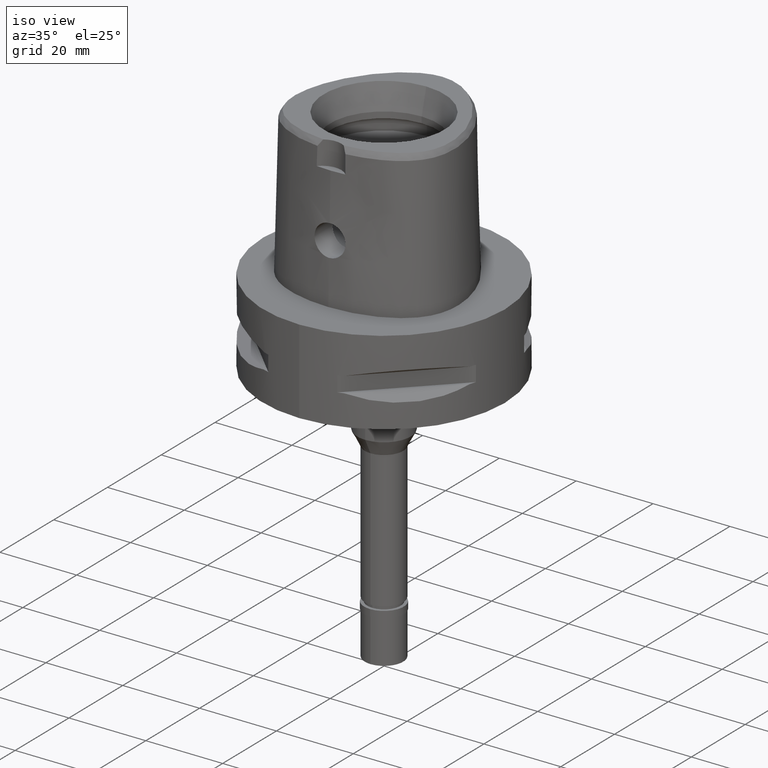
[diagram: clean part render]
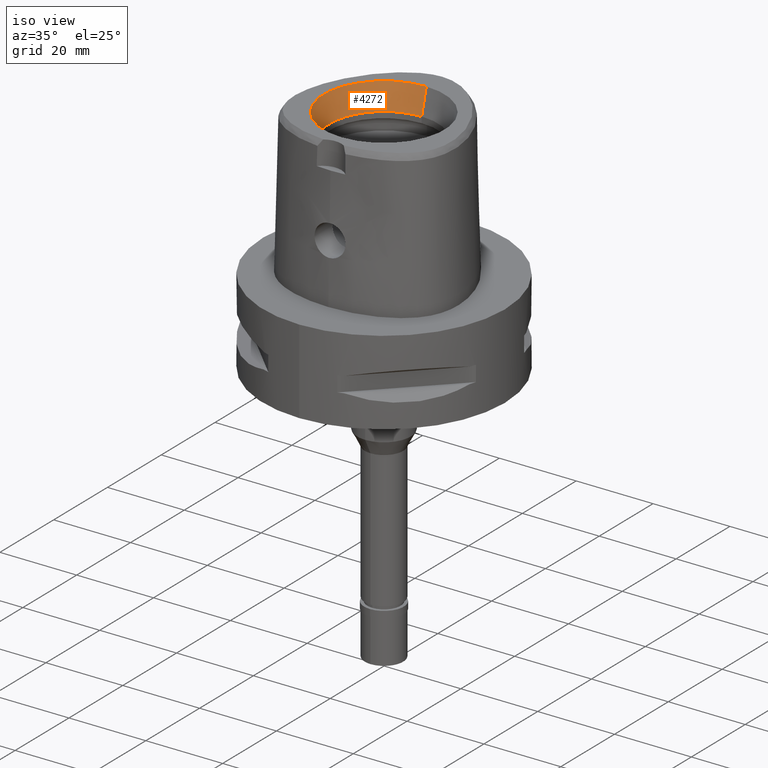
[diagram: same view with one face highlighted and labeled with its STEP entity id]
A machine part, iso view. The second image highlights one B-rep face of the part: STEP entity #4272.
In plain terms, the highlighted conical surface has half-angle 15 deg.
Its self-contained STEP definition (entity closure, byte-faithful):
#267 = LINE ( 'NONE', #340, #4020 ) ;
#340 = CARTESIAN_POINT ( 'NONE',  ( 0.0000000000000000000, 14.00000000000000000, 31.60000000000000142 ) ) ;
#398 = DIRECTION ( 'NONE',  ( 0.0000000000000000000, 1.000000000000000000, 0.0000000000000000000 ) ) ;
#628 = CIRCLE ( 'NONE', #1918, 14.00000000000000000 ) ;
#953 = DIRECTION ( 'NONE',  ( 0.0000000000000000000, 0.0000000000000000000, 1.000000000000000000 ) ) ;
#1056 = LINE ( 'NONE', #4608, #2076 ) ;
#1065 = DIRECTION ( 'NONE',  ( 0.0000000000000000000, 1.000000000000000000, 0.0000000000000000000 ) ) ;
#1157 = CARTESIAN_POINT ( 'NONE',  ( 0.0000000000000000000, 0.0000000000000000000, 31.60000000000000142 ) ) ;
#1244 = CONICAL_SURFACE ( 'NONE', #2530, 14.85743741577999977, 0.2617993877991000029 ) ;
#1280 = CARTESIAN_POINT ( 'NONE',  ( 0.0000000000000000000, 15.71487483155999776, 38.00000000000000000 ) ) ;
#1360 = EDGE_CURVE ( 'NONE', #1889, #3131, #628, .T. ) ;
#1542 = EDGE_CURVE ( 'NONE', #2720, #4407, #2888, .T. ) ;
#1680 = CARTESIAN_POINT ( 'NONE',  ( 0.0000000000000000000, 14.00000000000000000, 31.60000000000000142 ) ) ;
#1773 = CARTESIAN_POINT ( 'NONE',  ( 0.0000000000000000000, -14.00000000000000000, 31.60000000000000142 ) ) ;
#1879 = ORIENTED_EDGE ( 'NONE', *, *, #3336, .T. ) ;
#1889 = VERTEX_POINT ( 'NONE', #1680 ) ;
#1905 = CARTESIAN_POINT ( 'NONE',  ( 0.0000000000000000000, 0.0000000000000000000, 34.79999999999999716 ) ) ;
#1918 = AXIS2_PLACEMENT_3D ( 'NONE', #1157, #4734, #398 ) ;
#1969 = EDGE_LOOP ( 'NONE', ( #2254, #4122, #1879, #3577 ) ) ;
#2076 = VECTOR ( 'NONE', #2261, 1000.000000000000000 ) ;
#2254 = ORIENTED_EDGE ( 'NONE', *, *, #3385, .F. ) ;
#2261 = DIRECTION ( 'NONE',  ( 0.0000000000000000000, -0.2588190451025869088, 0.9659258262890505486 ) ) ;
#2489 = CARTESIAN_POINT ( 'NONE',  ( 0.0000000000000000000, -15.71487483155999776, 38.00000000000000000 ) ) ;
#2530 = AXIS2_PLACEMENT_3D ( 'NONE', #1905, #4244, #3129 ) ;
#2720 = VERTEX_POINT ( 'NONE', #1280 ) ;
#2888 = CIRCLE ( 'NONE', #3130, 15.71487483155999776 ) ;
#2979 = DIRECTION ( 'NONE',  ( 0.0000000000000000000, 0.2588190451025869088, 0.9659258262890505486 ) ) ;
#3048 = FACE_OUTER_BOUND ( 'NONE', #1969, .T. ) ;
#3129 = DIRECTION ( 'NONE',  ( 0.0000000000000000000, 1.000000000000000000, 0.0000000000000000000 ) ) ;
#3130 = AXIS2_PLACEMENT_3D ( 'NONE', #4421, #953, #1065 ) ;
#3131 = VERTEX_POINT ( 'NONE', #1773 ) ;
#3336 = EDGE_CURVE ( 'NONE', #1889, #2720, #267, .T. ) ;
#3385 = EDGE_CURVE ( 'NONE', #3131, #4407, #1056, .T. ) ;
#3577 = ORIENTED_EDGE ( 'NONE', *, *, #1542, .T. ) ;
#4020 = VECTOR ( 'NONE', #2979, 1000.000000000000000 ) ;
#4122 = ORIENTED_EDGE ( 'NONE', *, *, #1360, .F. ) ;
#4244 = DIRECTION ( 'NONE',  ( 0.0000000000000000000, 0.0000000000000000000, 1.000000000000000000 ) ) ;
#4272 = ADVANCED_FACE ( 'NONE', ( #3048 ), #1244, .F. ) ;
#4407 = VERTEX_POINT ( 'NONE', #2489 ) ;
#4421 = CARTESIAN_POINT ( 'NONE',  ( 0.0000000000000000000, 0.0000000000000000000, 38.00000000000000000 ) ) ;
#4608 = CARTESIAN_POINT ( 'NONE',  ( 0.0000000000000000000, -14.00000000000000000, 31.60000000000000142 ) ) ;
#4734 = DIRECTION ( 'NONE',  ( 0.0000000000000000000, 0.0000000000000000000, 1.000000000000000000 ) ) ;